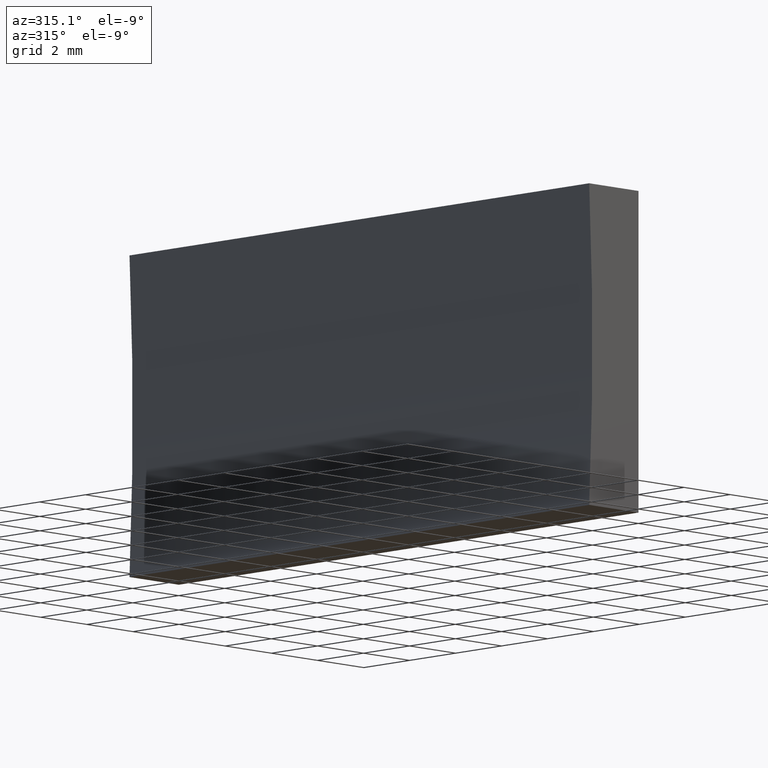
[diagram: clean part render]
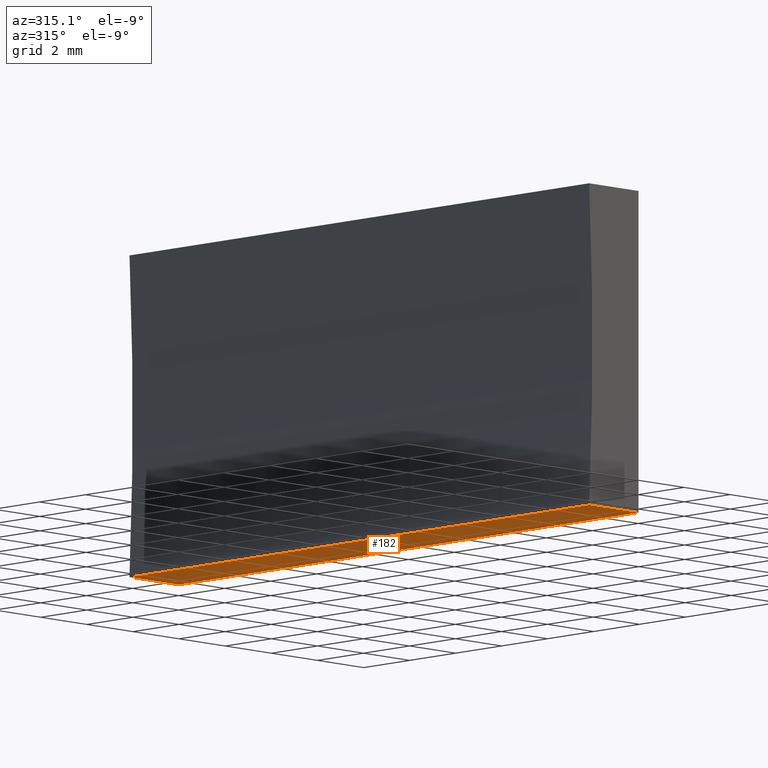
[diagram: same view with one face highlighted and labeled with its STEP entity id]
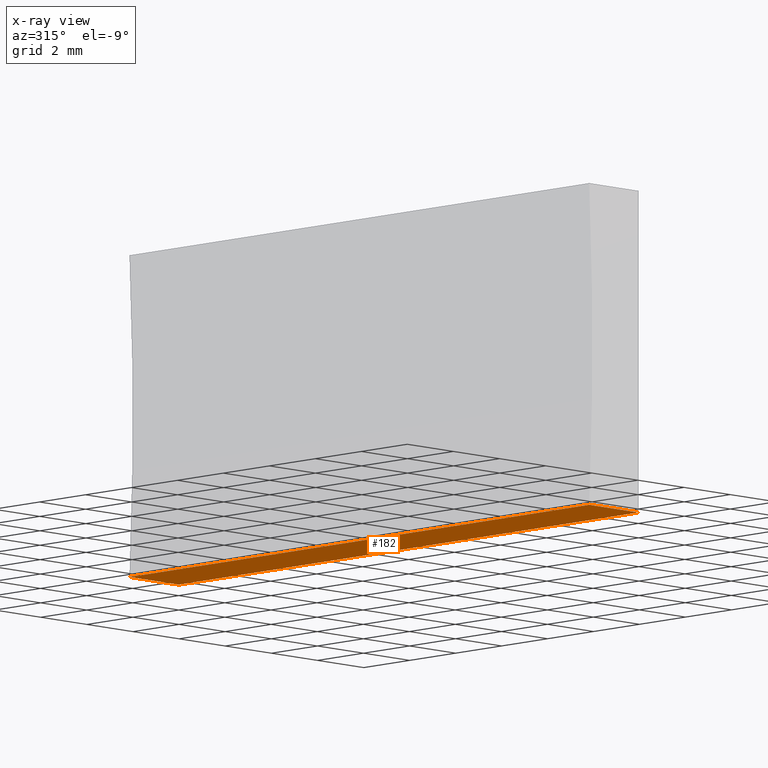
[diagram: x-ray of the same camera — body ghosted, the highlighted face saturated]
A machine part, auxiliary view. The second image highlights one B-rep face of the part: STEP entity #182.
The next image is the same camera in x-ray: the body ghosted, the highlighted face saturated — about 0% of this face is hidden behind the body in this view.
In plain terms, the highlighted planar face has unit normal (0, -0, 1).
Its self-contained STEP definition (entity closure, byte-faithful):
#3 = DIRECTION ( 'NONE',  ( 1.000000000000000000, 0.0000000000000000000, -8.119784972569431900E-016 ) ) ;
#5 = EDGE_CURVE ( 'NONE', #48, #185, #176, .T. ) ;
#27 = DIRECTION ( 'NONE',  ( -1.000000000000000000, 0.0000000000000000000, 8.119784972569430900E-016 ) ) ;
#37 = PLANE ( 'NONE',  #39 ) ;
#39 = AXIS2_PLACEMENT_3D ( 'NONE', #160, #117, #3 ) ;
#45 = ORIENTED_EDGE ( 'NONE', *, *, #78, .F. ) ;
#48 = VERTEX_POINT ( 'NONE', #181 ) ;
#53 = DIRECTION ( 'NONE',  ( -0.0000000000000000000, -1.000000000000000000, -0.0000000000000000000 ) ) ;
#56 = DIRECTION ( 'NONE',  ( -1.000000000000000000, 0.0000000000000000000, 8.119784972569430900E-016 ) ) ;
#62 = EDGE_CURVE ( 'NONE', #155, #77, #96, .T. ) ;
#72 = EDGE_LOOP ( 'NONE', ( #136, #45, #128, #80 ) ) ;
#77 = VERTEX_POINT ( 'NONE', #137 ) ;
#78 = EDGE_CURVE ( 'NONE', #185, #77, #157, .T. ) ;
#80 = ORIENTED_EDGE ( 'NONE', *, *, #200, .T. ) ;
#96 = LINE ( 'NONE', #179, #197 ) ;
#101 = CARTESIAN_POINT ( 'NONE',  ( -2.136415535432423200, 20.00000000000000000, -7.806255641895631900E-015 ) ) ;
#110 = VECTOR ( 'NONE', #163, 1000.000000000000000 ) ;
#117 = DIRECTION ( 'NONE',  ( 8.119784972569431900E-016, -0.0000000000000000000, 1.000000000000000000 ) ) ;
#128 = ORIENTED_EDGE ( 'NONE', *, *, #5, .F. ) ;
#131 = CARTESIAN_POINT ( 'NONE',  ( 0.0000000000000000000, 20.00000000000000000, 0.0000000000000000000 ) ) ;
#136 = ORIENTED_EDGE ( 'NONE', *, *, #62, .T. ) ;
#137 = CARTESIAN_POINT ( 'NONE',  ( -2.136415535432423200, 0.0000000000000000000, -7.806255641895631900E-015 ) ) ;
#138 = VECTOR ( 'NONE', #56, 1000.000000000000000 ) ;
#140 = VECTOR ( 'NONE', #53, 1000.000000000000000 ) ;
#145 = CARTESIAN_POINT ( 'NONE',  ( 0.0000000000000000000, 0.0000000000000000000, 0.0000000000000000000 ) ) ;
#146 = FACE_OUTER_BOUND ( 'NONE', #72, .T. ) ;
#155 = VERTEX_POINT ( 'NONE', #145 ) ;
#157 = LINE ( 'NONE', #101, #110 ) ;
#160 = CARTESIAN_POINT ( 'NONE',  ( 0.0000000000000000000, 20.00000000000000000, 0.0000000000000000000 ) ) ;
#163 = DIRECTION ( 'NONE',  ( -0.0000000000000000000, -1.000000000000000000, -0.0000000000000000000 ) ) ;
#175 = CARTESIAN_POINT ( 'NONE',  ( 0.0000000000000000000, 20.00000000000000000, 0.0000000000000000000 ) ) ;
#176 = LINE ( 'NONE', #175, #138 ) ;
#179 = CARTESIAN_POINT ( 'NONE',  ( 0.0000000000000000000, 0.0000000000000000000, 0.0000000000000000000 ) ) ;
#181 = CARTESIAN_POINT ( 'NONE',  ( 0.0000000000000000000, 20.00000000000000000, 0.0000000000000000000 ) ) ;
#182 = ADVANCED_FACE ( 'NONE', ( #146 ), #37, .F. ) ;
#183 = LINE ( 'NONE', #131, #140 ) ;
#185 = VERTEX_POINT ( 'NONE', #188 ) ;
#188 = CARTESIAN_POINT ( 'NONE',  ( -2.136415535432423200, 20.00000000000000000, -7.806255641895631900E-015 ) ) ;
#197 = VECTOR ( 'NONE', #27, 1000.000000000000000 ) ;
#200 = EDGE_CURVE ( 'NONE', #48, #155, #183, .T. ) ;